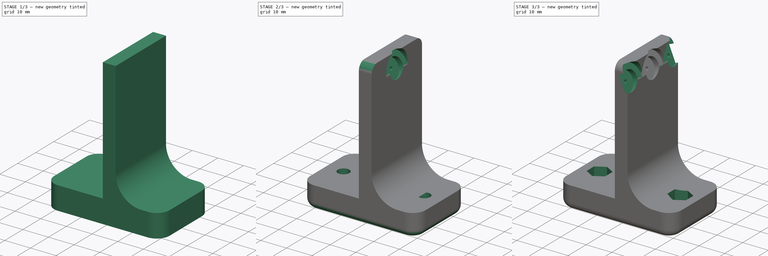
[diagram: build sequence overview — one tinted view per stage of 3, left to right]
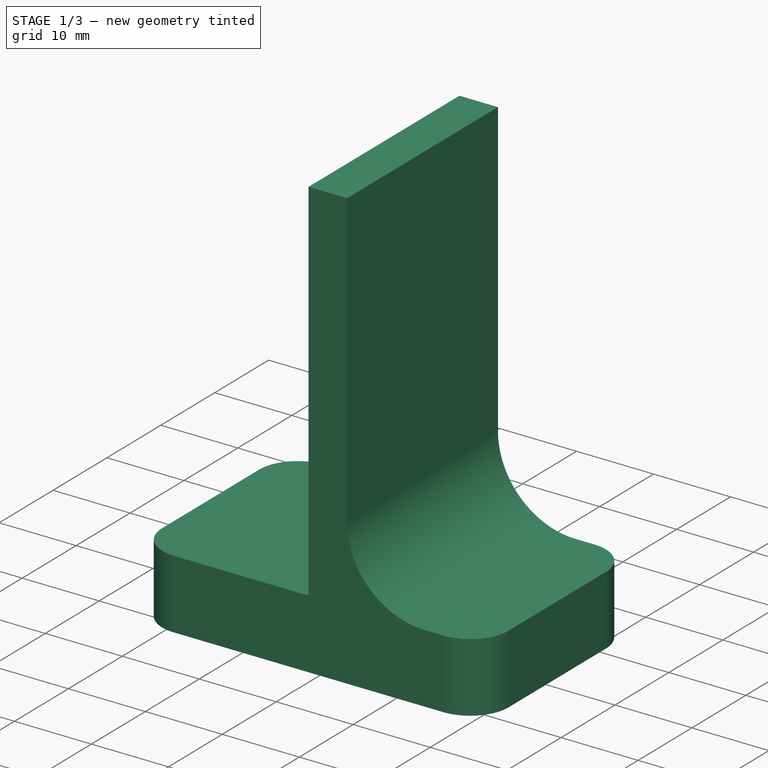
[diagram: stage 1 of 3 — iso view after this stage's code; geometry added in this stage tinted green]
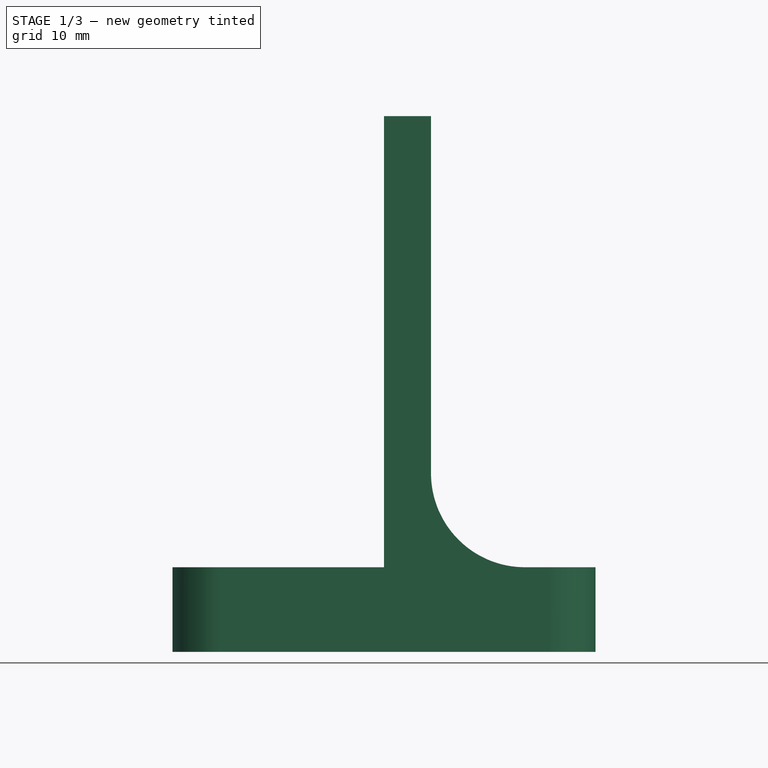
[diagram: stage 1 of 3 — front view after this stage's code; geometry added in this stage tinted green]
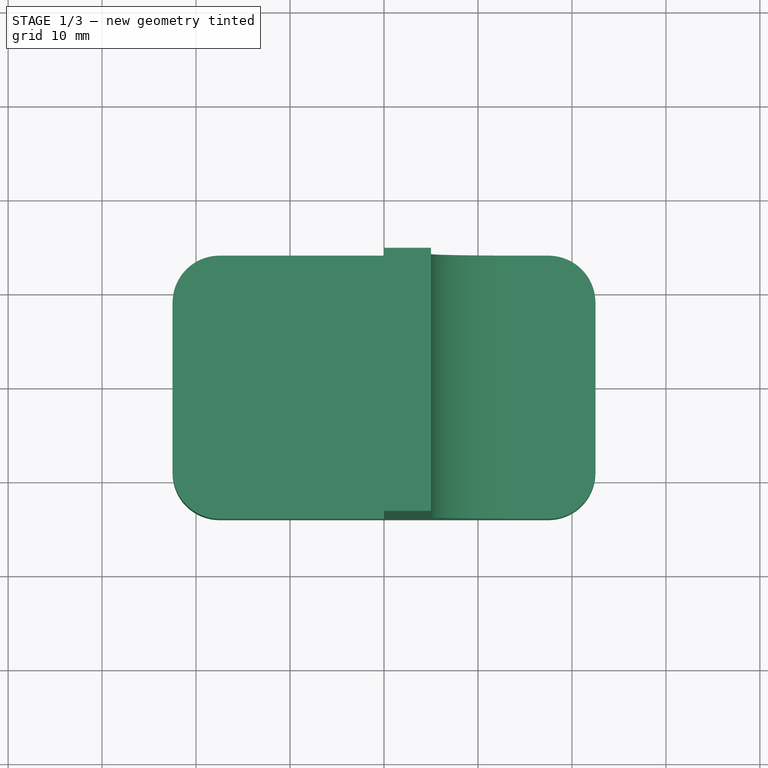
[diagram: stage 1 of 3 — top view after this stage's code; geometry added in this stage tinted green]
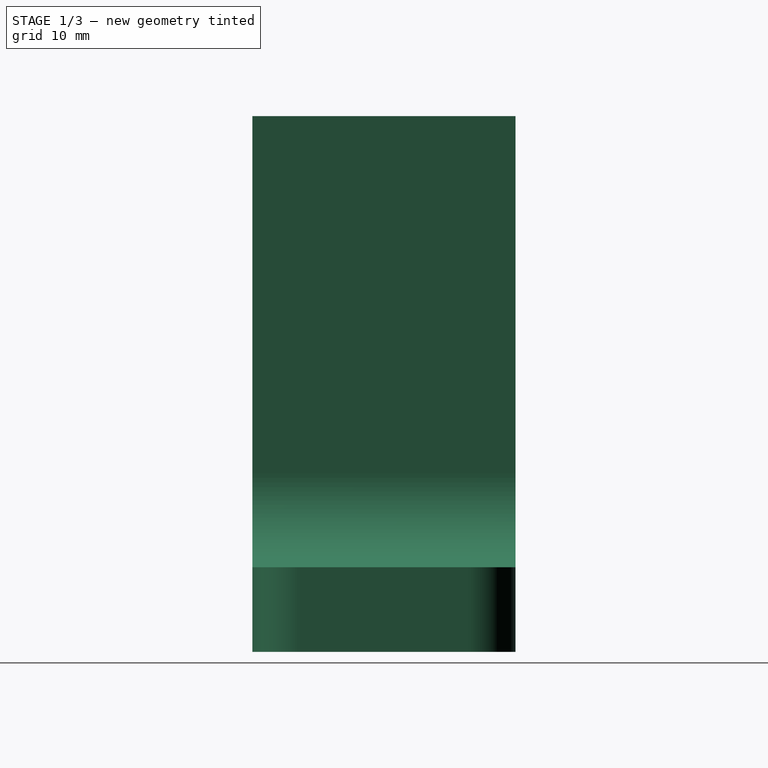
[diagram: stage 1 of 3 — right view after this stage's code; geometry added in this stage tinted green]
FCSTD DOCUMENT  (FreeCAD 1.0R39109 (Git))
Label: PinMount
License: All rights reserved
LicenseURL: http://en.wikipedia.org/wiki/All_rights_reserved
objects: Sketcher::SketchObject×4, PartDesign::Fillet×2, PartDesign::Pocket×2, PartDesign::Pad×1, PartDesign::Plane×1, PartDesign::Groove×1, PartDesign::LinearPattern×1, PartDesign::Mirrored×1, PartDesign::MultiTransform×1, PartDesign::Body×1
note: 34 computed .brp shape members not serialized (recipe doc carries the construction recipe); baked Part::Feature solids carry a one-line shape summary decoded from their .brp

FEATURE [Sketcher::SketchObject] Sketch
  ArcFitTolerance = 1e-06
  AttachmentSupport = -> [XZ_Plane]
  FullyConstrained = true
  MakeInternals = false
  MapMode = 5
  Placement = pos=(0,0,0) rot=(1,0,0;1.5708rad)
  sketch-geometry (9):
    g0: LineSegment StartX=-22.5 StartY=0 StartZ=0 EndX=0 EndY=0 EndZ=0
    g1: LineSegment StartX=0 StartY=0 StartZ=0 EndX=0 EndY=48 EndZ=0
    g2: LineSegment StartX=0 StartY=48 StartZ=0 EndX=5 EndY=48 EndZ=0
    g3: LineSegment StartX=22.5 StartY=-1.8e-15 StartZ=0 EndX=22.5 EndY=-9 EndZ=0
    g4: LineSegment StartX=22.5 StartY=-9 StartZ=0 EndX=-22.5 EndY=-9 EndZ=0
    g5: LineSegment StartX=-22.5 StartY=-9 StartZ=0 EndX=-22.5 EndY=0 EndZ=0
    g6: LineSegment StartX=5 StartY=48 StartZ=0 EndX=5 EndY=10 EndZ=0
    g7: LineSegment StartX=22.5 StartY=-1.8e-15 StartZ=0 EndX=15 EndY=-1.8e-15 EndZ=0
    g8: ArcOfCircle CenterX=15 CenterY=10 CenterZ=0 NormalX=0 NormalY=0 NormalZ=1 AngleXU=0 Radius=10 StartAngle=3.14159 EndAngle=4.71239
  constraints (25):
    c: PointOnObject(g0,g-2)
    c: Horizontal(g0)
    c: Coincident(g0,g1)
    c: PointOnObject(g1,g-2)
    c: Coincident(g1,g2)
    c: Horizontal(g2)
    c: Vertical(g3)
    c: Coincident(g3,g4)
    c: Coincident(g4,g5)
    c: Coincident(g5,g0)
    c: Vertical(g5)
    c: Coincident(g6,g2)
    c: Vertical(g6)
    c: Coincident(g7,g3)
    c: Horizontal(g7)
    c: Tangent(g8,g7) = 1.5708
    c: Tangent(g8,g6) = -1.5708
    c: DistanceY(g5,g5) = 9
    c: Equal(g5,g3)
    c: Symmetric(g4,g3,g-2)
    c: DistanceX(g2,g2) = 5
    c: Radius(g8) = 10
    c: DistanceX(g4,g4) = 45
    c: DistanceY(g1,g1) = 48
    c: PointOnObject(g0,g-1)
FEATURE [PartDesign::Pad] Pad
  Direction = (0,-1,2e-16)
  Length = 28
  Length2 = 10
  Midplane = true
  Placement = pos=(0,0,0) rot=(1,0,0;1.5708rad)
  Profile = -> Sketch
  ReferenceAxis = -> Sketch [N_Axis]
  Refine = true
  Suppressed = false
  Type = 0
FEATURE [Sketcher::SketchObject] Sketch001
  ArcFitTolerance = 1e-06
  AttachmentSupport = -> [XY_Plane]
  FullyConstrained = true
  MakeInternals = false
  MapMode = 5
  sketch-geometry (2):
    g0: Circle CenterX=-15.75 CenterY=0 CenterZ=0 NormalX=0 NormalY=0 NormalZ=1 AngleXU=0 Radius=2.25
    g1: Circle CenterX=15.75 CenterY=0 CenterZ=0 NormalX=0 NormalY=0 NormalZ=1 AngleXU=0 Radius=2.25
  constraints (5):
    c: PointOnObject(g0,g-1)
    c: Symmetric(g1,g0,g-2)
    c: DistanceX(g0,g1) = 31.5
    c: Equal(g0,g1)
    c: Diameter(g1) = 4.5
FEATURE [PartDesign::Fillet] Fillet
  Base = -> Pad [Edge4,Edge3,Edge10,Edge9]
  BaseFeature = -> Pad
  Placement = pos=(0,0,0) rot=(1,0,0;1.5708rad)
  Radius = 5
  Refine = true
  SupportTransform = false
  Suppressed = false
  UseAllEdges = false
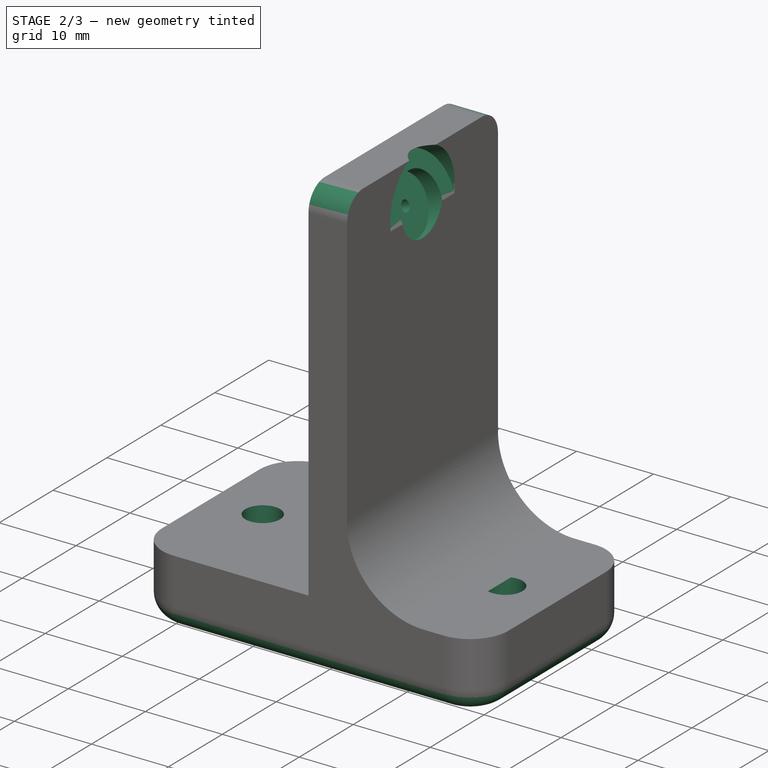
[diagram: stage 2 of 3 — iso view after this stage's code; geometry added in this stage tinted green]
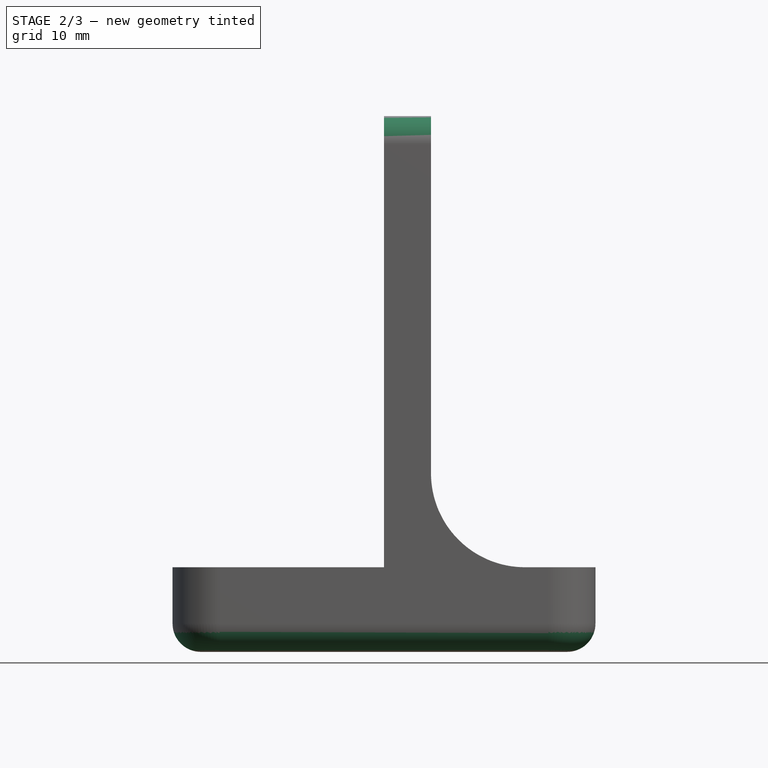
[diagram: stage 2 of 3 — front view after this stage's code; geometry added in this stage tinted green]
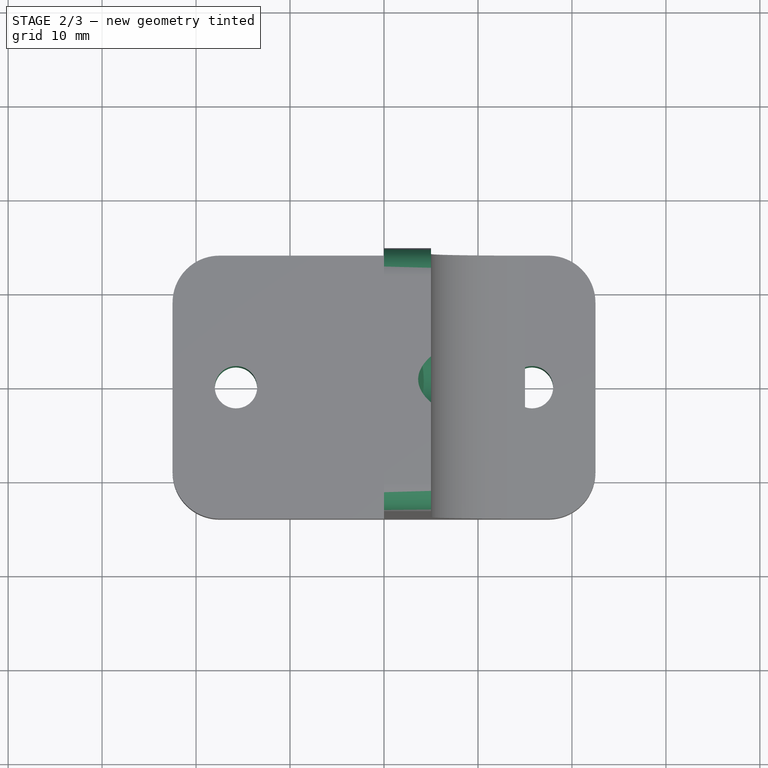
[diagram: stage 2 of 3 — top view after this stage's code; geometry added in this stage tinted green]
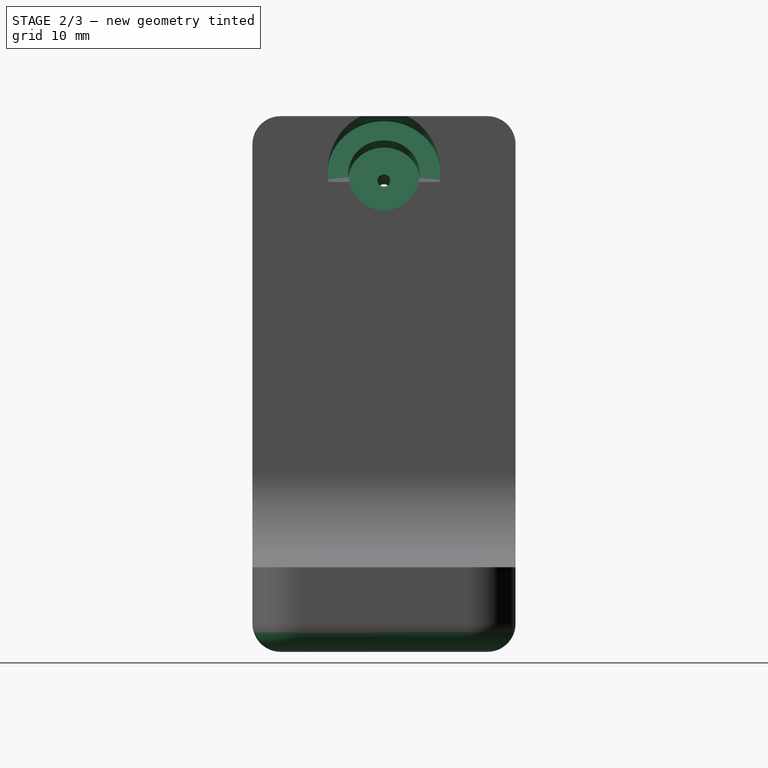
[diagram: stage 2 of 3 — right view after this stage's code; geometry added in this stage tinted green]
FEATURE [PartDesign::Plane] DatumPlane
  Length = 85.3701
  MapMode = 3
  Placement = pos=(0,0,40) rot=(0,1,0;-0.392699rad)
  ResizeMode = 0
  Width = 62.105
FEATURE [Sketcher::SketchObject] Sketch002
  ArcFitTolerance = 1e-06
  AttachmentSupport = -> [DatumPlane]
  FullyConstrained = true
  MakeInternals = false
  MapMode = 5
  Placement = pos=(1.8e-15,0,40) rot=(0,-1,0;0.392699rad)
  sketch-geometry (8):
    g0: LineSegment StartX=-7 StartY=0 StartZ=0 EndX=-7 EndY=0.7 EndZ=0
    g1: LineSegment StartX=-7 StartY=0.7 StartZ=0 EndX=3 EndY=0.7 EndZ=0
    g2: LineSegment StartX=3 StartY=0.7 StartZ=0 EndX=3 EndY=3.8 EndZ=0
    g3: LineSegment StartX=3 StartY=3.8 StartZ=0 EndX=5 EndY=3.8 EndZ=0
    g4: LineSegment StartX=15 StartY=0 StartZ=0 EndX=-7 EndY=0 EndZ=0
    g5: LineSegment StartX=5 StartY=3.8 StartZ=0 EndX=5 EndY=6 EndZ=0
    g6: LineSegment StartX=5 StartY=6 StartZ=0 EndX=15 EndY=6 EndZ=0
    g7: LineSegment StartX=15 StartY=6 StartZ=0 EndX=15 EndY=0 EndZ=0
  constraints (24):
    c: PointOnObject(g0,g-1)
    c: Vertical(g0)
    c: Coincident(g0,g1)
    c: Horizontal(g1)
    c: Coincident(g1,g2)
    c: Vertical(g2)
    c: Coincident(g2,g3)
    c: Horizontal(g3)
    c: Coincident(g4,g0)
    c: Horizontal(g4)
    c: Coincident(g3,g5)
    c: Vertical(g5)
    c: Coincident(g5,g6)
    c: Horizontal(g6)
    c: Coincident(g6,g7)
    c: Coincident(g7,g4)
    c: Vertical(g7)
    c: DistanceY(g7,g7) = 6
    c: DistanceY(g0,g0) = 0.7
    c: DistanceY(g2,g2) = 3.1
    c: DistanceX(g3,g3) = 2
    c: DistanceX(g6,g6) = 10
    c: DistanceX(g1,g1) = 10
    c: DistanceX(g-1,g1) = 3
FEATURE [PartDesign::Fillet] Fillet001
  Base = -> Fillet [Edge15,Edge13,Edge4,Edge11,Edge14,Edge16,Edge18,Edge17,Edge30,Edge24]
  BaseFeature = -> Fillet
  Placement = pos=(0,0,0) rot=(1,0,0;1.5708rad)
  Radius = 3
  Refine = true
  SupportTransform = false
  Suppressed = false
  UseAllEdges = false
FEATURE [PartDesign::Groove] Groove  label="PinHole"
  Angle = 360
  Angle2 = 60
  Axis = (0.92388,0,0.382683)
  Base = (1.8e-15,0,40)
  BaseFeature = -> Fillet001
  Placement = pos=(0,0,0) rot=(1,0,0;1.5708rad)
  Profile = -> Sketch002
  ReferenceAxis = -> Sketch002 [H_Axis]
  Refine = true
  Reversed = true
  Suppressed = false
  Type = 0
FEATURE [PartDesign::Pocket] Pocket  label="ScrewThrough"
  BaseFeature = -> Groove
  Direction = (0,0,-1)
  Length = 5
  Length2 = 5
  Placement = pos=(0,0,0) rot=(1,0,0;1.5708rad)
  Profile = -> Sketch001
  ReferenceAxis = -> Sketch001 [N_Axis]
  Refine = true
  Suppressed = false
  Type = 1
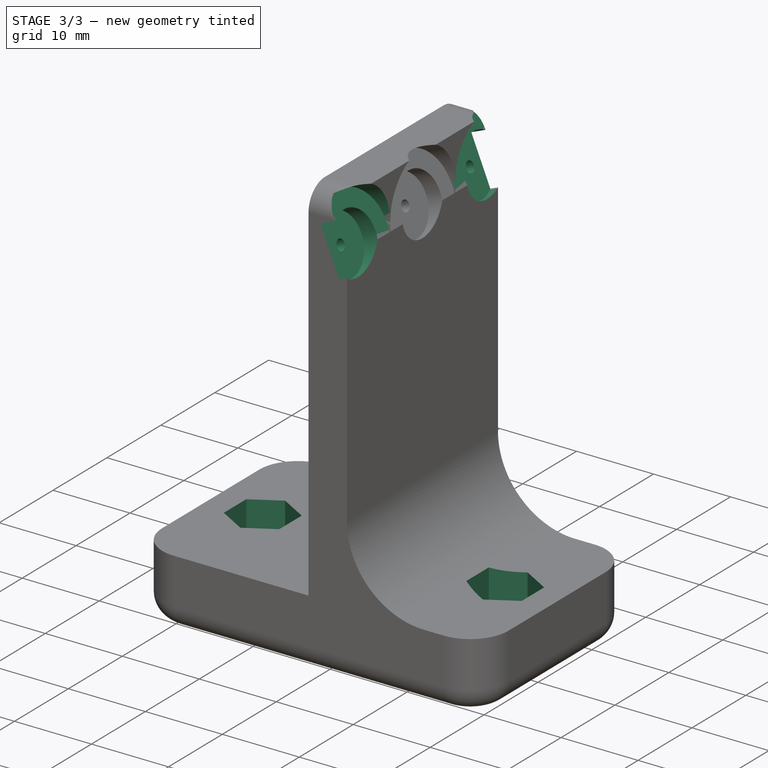
[diagram: stage 3 of 3 — iso view after this stage's code; geometry added in this stage tinted green]
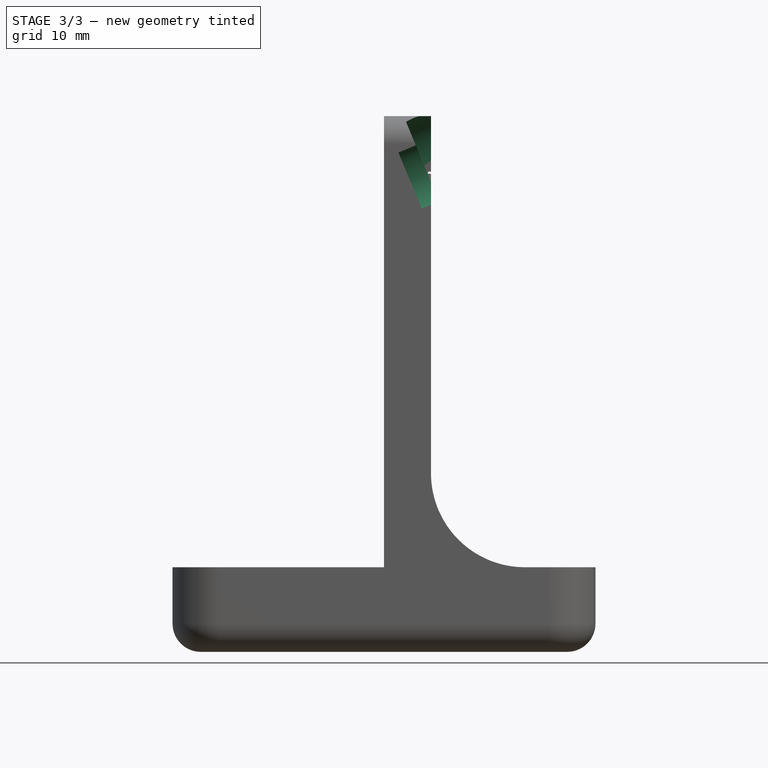
[diagram: stage 3 of 3 — front view after this stage's code; geometry added in this stage tinted green]
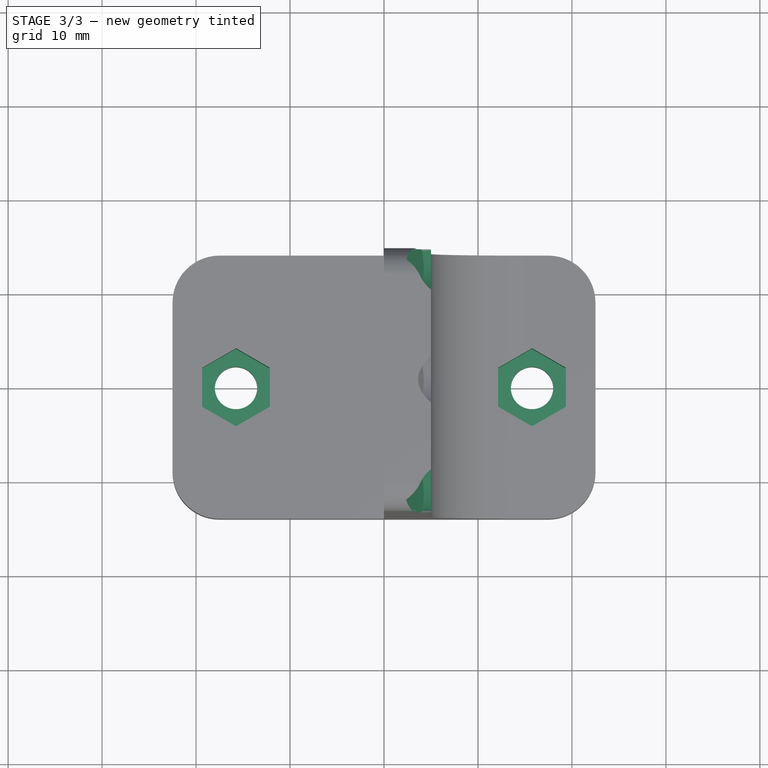
[diagram: stage 3 of 3 — top view after this stage's code; geometry added in this stage tinted green]
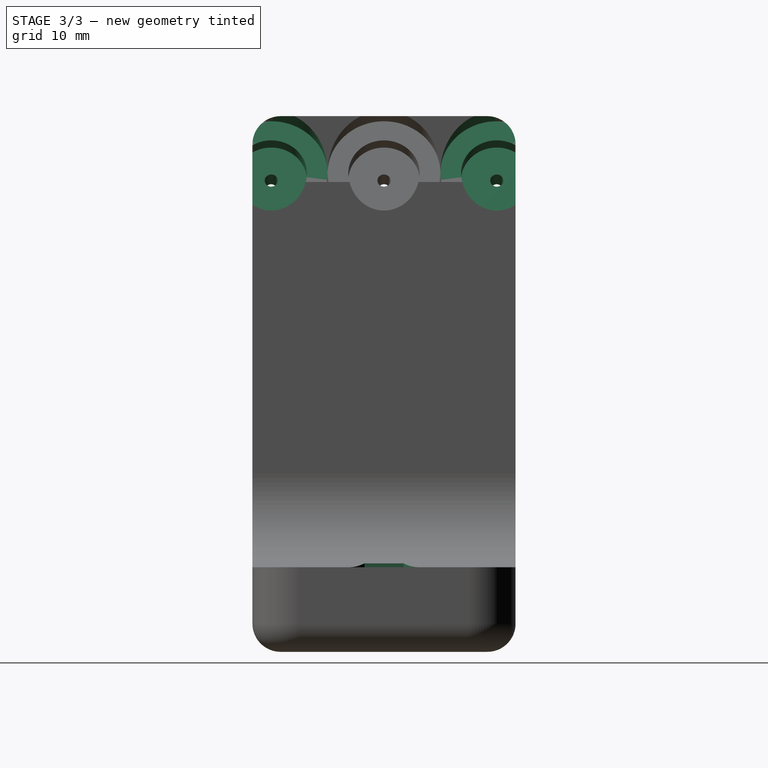
[diagram: stage 3 of 3 — right view after this stage's code; geometry added in this stage tinted green]
FEATURE [Sketcher::SketchObject] Sketch003
  ArcFitTolerance = 1e-06
  AttachmentSupport = -> [XY_Plane]
  FullyConstrained = true
  MakeInternals = false
  MapMode = 5
  sketch-geometry (14):
    g0: LineSegment StartX=19.35 StartY=-2.07846 StartZ=0 EndX=19.35 EndY=2.07846 EndZ=0
    g1: LineSegment StartX=19.35 StartY=2.07846 StartZ=0 EndX=15.75 EndY=4.15692 EndZ=0
    g2: LineSegment StartX=15.75 StartY=4.15692 StartZ=0 EndX=12.15 EndY=2.07846 EndZ=0
    g3: LineSegment StartX=12.15 StartY=2.07846 StartZ=0 EndX=12.15 EndY=-2.07846 EndZ=0
    g4: LineSegment StartX=12.15 StartY=-2.07846 StartZ=0 EndX=15.75 EndY=-4.15692 EndZ=0
    g5: LineSegment StartX=15.75 StartY=-4.15692 StartZ=0 EndX=19.35 EndY=-2.07846 EndZ=0
    g6: Circle [constr] CenterX=15.75 CenterY=0 CenterZ=0 NormalX=0 NormalY=0 NormalZ=1 AngleXU=0 Radius=4.15692
    g7: LineSegment StartX=-12.15 StartY=-2.07846 StartZ=0 EndX=-12.15 EndY=2.07846 EndZ=0
    g8: LineSegment StartX=-12.15 StartY=2.07846 StartZ=0 EndX=-15.75 EndY=4.15692 EndZ=0
    g9: LineSegment StartX=-15.75 StartY=4.15692 StartZ=0 EndX=-19.35 EndY=2.07846 EndZ=0
    g10: LineSegment StartX=-19.35 StartY=2.07846 StartZ=0 EndX=-19.35 EndY=-2.07846 EndZ=0
    g11: LineSegment StartX=-19.35 StartY=-2.07846 StartZ=0 EndX=-15.75 EndY=-4.15692 EndZ=0
    g12: LineSegment StartX=-15.75 StartY=-4.15692 StartZ=0 EndX=-12.15 EndY=-2.07846 EndZ=0
    g13: Circle [constr] CenterX=-15.75 CenterY=0 CenterZ=0 NormalX=0 NormalY=0 NormalZ=1 AngleXU=0 Radius=4.15692
  constraints (33):
    c: Coincident(g0,g1)
    c: Coincident(g1,g2)
    c: Coincident(g2,g3)
    c: Coincident(g3,g4)
    c: Coincident(g4,g5)
    c: Coincident(g5,g0)
    c: Equal(g0, g1-g5) x5
    c: PointOnObject(g0,g6)
    c: PointOnObject(g1,g6)
    c: PointOnObject(g2,g6)
    c: PointOnObject(g3,g6)
    c: PointOnObject(g4,g6)
    c: PointOnObject(g5,g6)
    c: PointOnObject(g6,g-1)
    c: Coincident(g7,g8)
    c: Coincident(g8,g9)
    c: Coincident(g9,g10)
    c: Coincident(g10,g11)
    c: Coincident(g11,g12)
    c: Coincident(g12,g7)
    c: Equal(g7, g8-g12) x5
    c: PointOnObject(g7,g13)
    c: PointOnObject(g8,g13)
    c: PointOnObject(g9,g13)
    c: PointOnObject(g10,g13)
    c: PointOnObject(g11,g13)
    c: PointOnObject(g12,g13)
    c: Vertical(g7)
    c: Vertical(g0)
    c: Symmetric(g13,g6,g-2)
    c: DistanceX(g13,g6) = 31.5
    c: DistanceX(g9,g7) = 7.2
    c: Equal(g7,g0)
FEATURE [PartDesign::Pocket] Pocket001  label="NutHole"
  BaseFeature = -> Pocket
  Direction = (0,0,-1)
  Length = 10
  Length2 = 5
  Midplane = true
  Placement = pos=(0,0,0) rot=(1,0,0;1.5708rad)
  Profile = -> Sketch003
  ReferenceAxis = -> Sketch003 [N_Axis]
  Refine = true
  Suppressed = false
  Type = 0
FEATURE [PartDesign::LinearPattern] LinearPattern
  Direction = -> Y_Axis
  Length = 12
  Mode = 1
  Occurrences = 2
  Offset = 12
  Placement = pos=(0,0,0) rot=(1,0,0;1.5708rad)
  Refine = true
  Suppressed = false
  TransformMode = 0
FEATURE [PartDesign::Mirrored] Mirrored
  MirrorPlane = -> XZ_Plane
  Placement = pos=(0,0,0) rot=(1,0,0;1.5708rad)
  Refine = true
  Suppressed = false
  TransformMode = 0
FEATURE [PartDesign::MultiTransform] MultiTransform
  BaseFeature = -> Pocket001
  Originals = -> [Groove]
  Placement = pos=(0,0,0) rot=(1,0,0;1.5708rad)
  Refine = true
  Suppressed = false
  TransformMode = 0
  Transformations = -> [LinearPattern,Mirrored]
FEATURE [PartDesign::Body] Body
  AllowCompound = false
  Group = -> [Sketch,Pad,Sketch001,Fillet,DatumPlane,Sketch002,Fillet001,Groove,Pocket,Sketch003,Pocket001,MultiTransform,LinearPattern,Mirrored]
  Origin = -> Origin
  Tip = -> MultiTransform
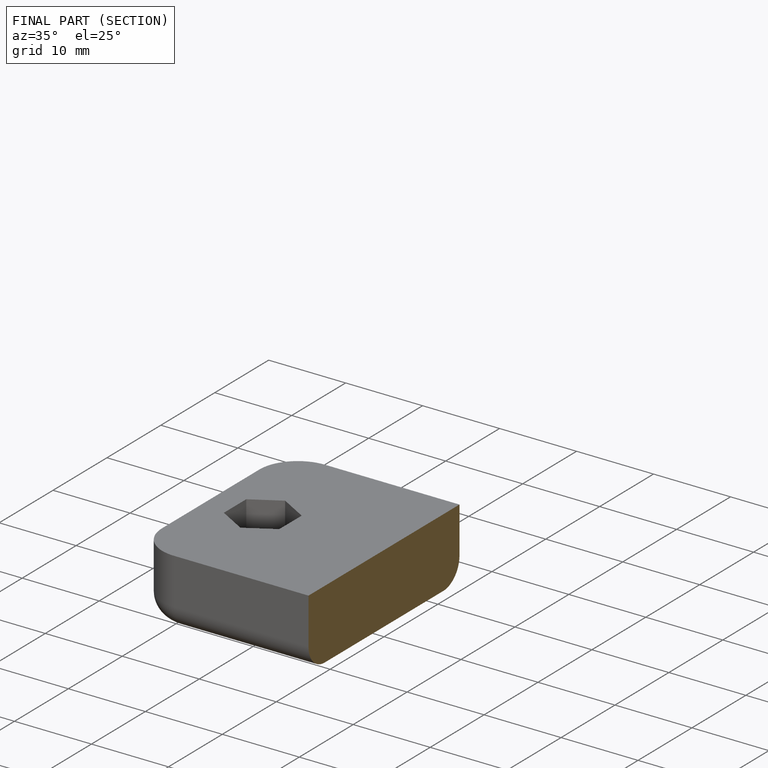
[diagram: finished part — half-section view (interior)]
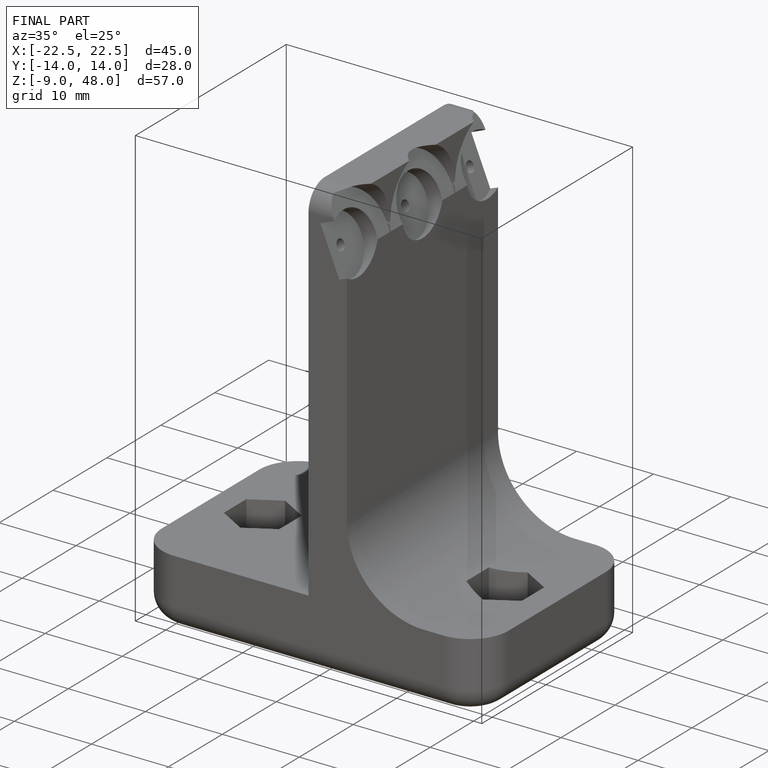
[diagram: finished part — iso view with bounding-box wireframe]
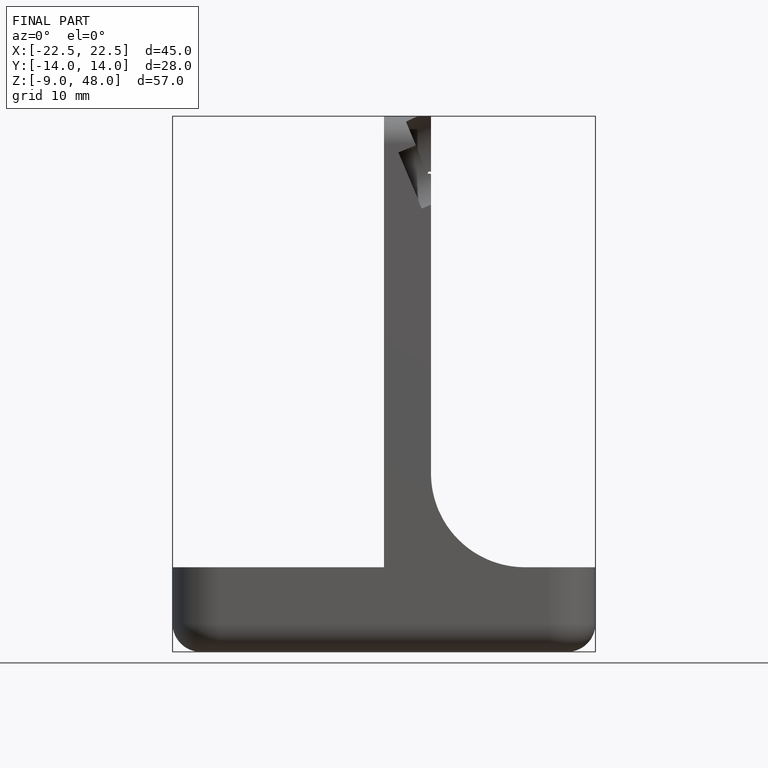
[diagram: finished part — front view with bounding-box wireframe]
